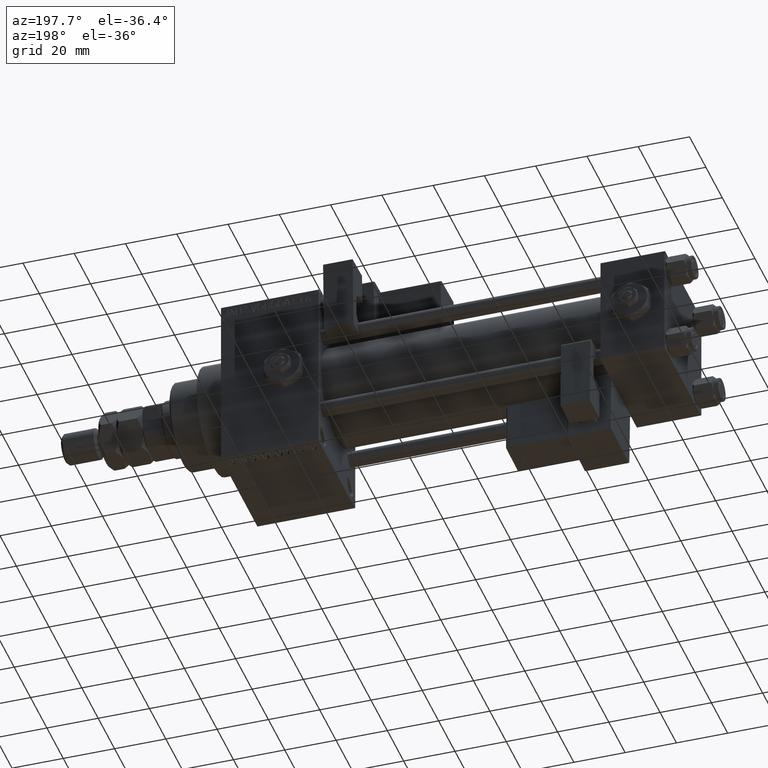
[diagram: clean part render]
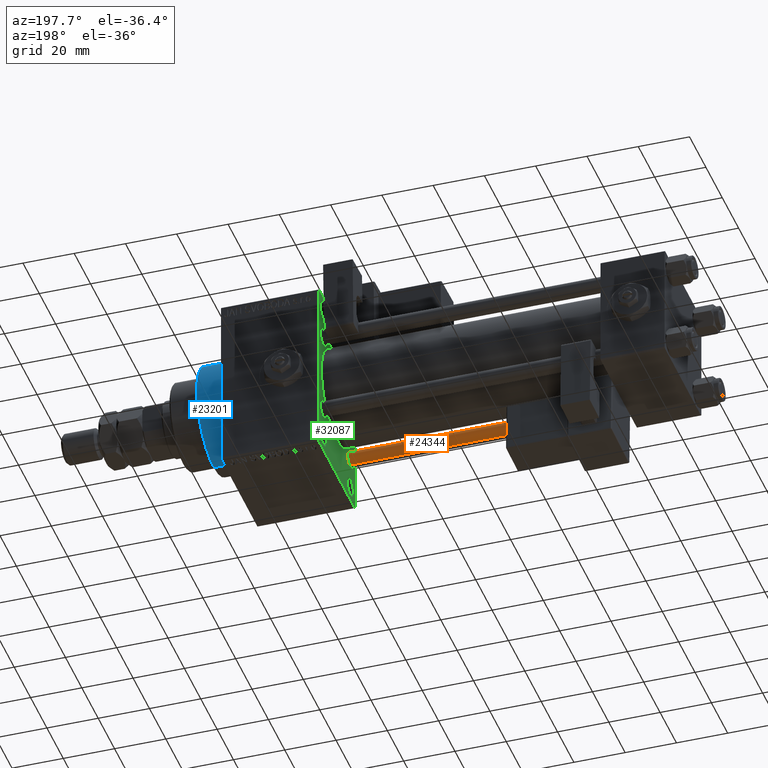
[diagram: same view with three faces highlighted in distinct colors, each labeled with its STEP entity id]
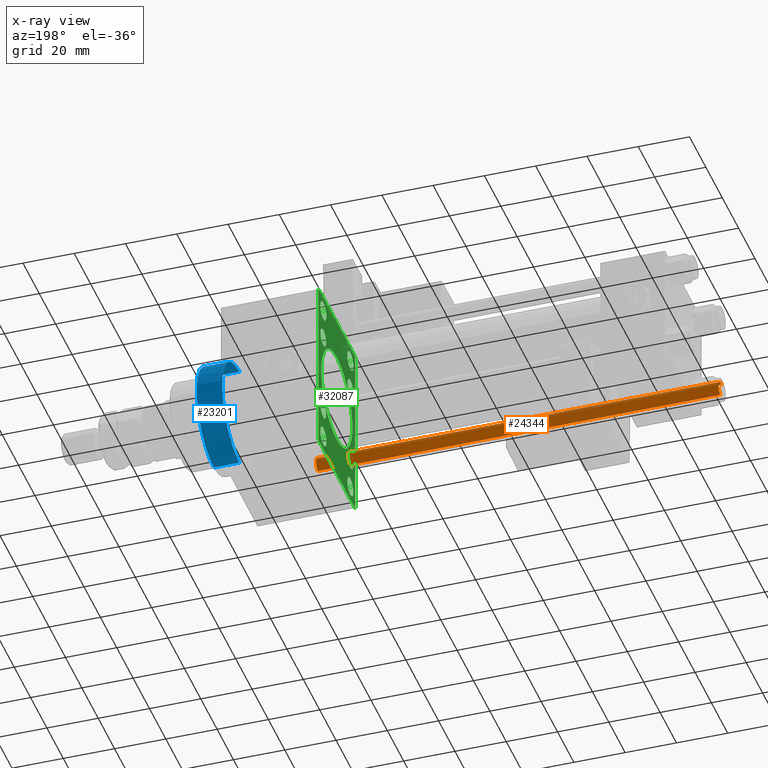
[diagram: x-ray of the same camera — body ghosted, the three highlighted faces saturated]
A machine part, auxiliary view with three faces highlighted in distinct colors.
The next image is the same camera in x-ray (body ghosted, the three faces saturated) — at least one of them is partly hidden behind the body in this view.
Their STEP definitions:

[orange] entity #24344 — the highlighted cylindrical surface (edge-blend (fillet) strip) has radius 3 mm, axis along (-1, 0, 0).
#2551 = EDGE_CURVE ( 'NONE', #22905, #46347, #29197, .T. ) ;
#3430 = CARTESIAN_POINT ( 'NONE',  ( -3.000000000000000444, 0.000000000000000000, 157.5000000000000000 ) ) ;
#4327 = CARTESIAN_POINT ( 'NONE',  ( 3.000000000000000444, 3.673940397442060361E-16, 158.0000000000000000 ) ) ;
#6402 = FACE_OUTER_BOUND ( 'NONE', #19177, .T. ) ;
#6585 = EDGE_CURVE ( 'NONE', #12872, #46347, #11054, .T. ) ;
#7378 = ORIENTED_EDGE ( 'NONE', *, *, #15538, .T. ) ;
#8373 = CARTESIAN_POINT ( 'NONE',  ( 3.000000000000000444, 3.673940397442060361E-16, 157.5000000000000000 ) ) ;
#11054 = CIRCLE ( 'NONE', #46968, 3.000000000000000444 ) ;
#12872 = VERTEX_POINT ( 'NONE', #18989 ) ;
#14355 = CARTESIAN_POINT ( 'NONE',  ( -3.000000000000000444, 0.000000000000000000, 158.0000000000000000 ) ) ;
#14438 = CYLINDRICAL_SURFACE ( 'NONE', #30579, 3.000000000000000444 ) ;
#15538 = EDGE_CURVE ( 'NONE', #47833, #12872, #30678, .T. ) ;
#18989 = CARTESIAN_POINT ( 'NONE',  ( -3.000000000000000444, 0.000000000000000000, 0.5000000000000281997 ) ) ;
#19177 = EDGE_LOOP ( 'NONE', ( #20157, #30179, #7378, #31444 ) ) ;
#20157 = ORIENTED_EDGE ( 'NONE', *, *, #2551, .F. ) ;
#22905 = VERTEX_POINT ( 'NONE', #8373 ) ;
#24344 = ADVANCED_FACE ( 'NONE', ( #6402 ), #14438, .T. ) ;
#25410 = VECTOR ( 'NONE', #37494, 1000.000000000000000 ) ;
#26004 = DIRECTION ( 'NONE',  ( 1.000000000000000000, 0.000000000000000000, 0.000000000000000000 ) ) ;
#27826 = DIRECTION ( 'NONE',  ( 1.000000000000000000, 0.000000000000000000, 0.000000000000000000 ) ) ;
#28103 = CARTESIAN_POINT ( 'NONE',  ( 0.000000000000000000, 0.000000000000000000, 0.5000000000000281997 ) ) ;
#29197 = LINE ( 'NONE', #4327, #25410 ) ;
#30179 = ORIENTED_EDGE ( 'NONE', *, *, #48372, .T. ) ;
#30579 = AXIS2_PLACEMENT_3D ( 'NONE', #35037, #34233, #46843 ) ;
#30678 = LINE ( 'NONE', #14355, #31084 ) ;
#31084 = VECTOR ( 'NONE', #31469, 1000.000000000000000 ) ;
#31444 = ORIENTED_EDGE ( 'NONE', *, *, #6585, .T. ) ;
#31469 = DIRECTION ( 'NONE',  ( -0.000000000000000000, -0.000000000000000000, -1.000000000000000000 ) ) ;
#31830 = DIRECTION ( 'NONE',  ( -0.000000000000000000, -0.000000000000000000, 1.000000000000000000 ) ) ;
#32265 = AXIS2_PLACEMENT_3D ( 'NONE', #46353, #42591, #26004 ) ;
#34233 = DIRECTION ( 'NONE',  ( -0.000000000000000000, -0.000000000000000000, -1.000000000000000000 ) ) ;
#34250 = CARTESIAN_POINT ( 'NONE',  ( 3.000000000000000444, 3.673940397442060361E-16, 0.5000000000000281997 ) ) ;
#35037 = CARTESIAN_POINT ( 'NONE',  ( 0.000000000000000000, 0.000000000000000000, 158.0000000000000000 ) ) ;
#37494 = DIRECTION ( 'NONE',  ( -0.000000000000000000, -0.000000000000000000, -1.000000000000000000 ) ) ;
#42591 = DIRECTION ( 'NONE',  ( 0.000000000000000000, 0.000000000000000000, -1.000000000000000000 ) ) ;
#46347 = VERTEX_POINT ( 'NONE', #34250 ) ;
#46353 = CARTESIAN_POINT ( 'NONE',  ( 0.000000000000000000, 0.000000000000000000, 157.5000000000000000 ) ) ;
#46843 = DIRECTION ( 'NONE',  ( -1.000000000000000000, 0.000000000000000000, 0.000000000000000000 ) ) ;
#46968 = AXIS2_PLACEMENT_3D ( 'NONE', #28103, #31830, #27826 ) ;
#47833 = VERTEX_POINT ( 'NONE', #3430 ) ;
#48372 = EDGE_CURVE ( 'NONE', #22905, #47833, #52803, .T. ) ;
#52803 = CIRCLE ( 'NONE', #32265, 3.000000000000000444 ) ;

[blue] entity #23201 — the highlighted cylindrical surface (partial cylindrical patch) has radius 21 mm, axis along (-1, -0, -0).
#119 = CARTESIAN_POINT ( 'NONE',  ( 183.0000000000000284, 0.000000000000000000, 0.000000000000000000 ) ) ;
#329 = CARTESIAN_POINT ( 'NONE',  ( 183.0000000000000284, 0.000000000000000000, 21.00000000000000000 ) ) ;
#350 = EDGE_CURVE ( 'NONE', #16542, #5692, #37287, .T. ) ;
#3228 = VERTEX_POINT ( 'NONE', #23965 ) ;
#3439 = FACE_OUTER_BOUND ( 'NONE', #22268, .T. ) ;
#5692 = VERTEX_POINT ( 'NONE', #43096 ) ;
#12658 = LINE ( 'NONE', #329, #49427 ) ;
#14232 = VERTEX_POINT ( 'NONE', #48795 ) ;
#16542 = VERTEX_POINT ( 'NONE', #42991 ) ;
#16804 = VECTOR ( 'NONE', #39225, 1000.000000000000000 ) ;
#17571 = DIRECTION ( 'NONE',  ( -1.000000000000000000, -0.000000000000000000, -0.000000000000000000 ) ) ;
#17661 = ORIENTED_EDGE ( 'NONE', *, *, #44597, .T. ) ;
#17839 = DIRECTION ( 'NONE',  ( 0.000000000000000000, 0.000000000000000000, 1.000000000000000000 ) ) ;
#18486 = AXIS2_PLACEMENT_3D ( 'NONE', #119, #36276, #28512 ) ;
#19764 = CARTESIAN_POINT ( 'NONE',  ( 173.0000000000000284, 0.000000000000000000, 0.000000000000000000 ) ) ;
#22045 = ORIENTED_EDGE ( 'NONE', *, *, #49480, .F. ) ;
#22268 = EDGE_LOOP ( 'NONE', ( #37737, #30200, #17661, #22045 ) ) ;
#22888 = CARTESIAN_POINT ( 'NONE',  ( 183.0000000000000284, 2.571758278209441661E-15, -21.00000000000000000 ) ) ;
#23201 = ADVANCED_FACE ( 'NONE', ( #3439 ), #52440, .T. ) ;
#23965 = CARTESIAN_POINT ( 'NONE',  ( 173.0000000000000284, 2.571758278209441661E-15, -21.00000000000000000 ) ) ;
#28512 = DIRECTION ( 'NONE',  ( 0.000000000000000000, 0.000000000000000000, -1.000000000000000000 ) ) ;
#28984 = DIRECTION ( 'NONE',  ( -1.000000000000000000, -0.000000000000000000, -0.000000000000000000 ) ) ;
#30200 = ORIENTED_EDGE ( 'NONE', *, *, #47088, .T. ) ;
#31373 = CIRCLE ( 'NONE', #43354, 21.00000000000000000 ) ;
#36276 = DIRECTION ( 'NONE',  ( 1.000000000000000000, 0.000000000000000000, 0.000000000000000000 ) ) ;
#37287 = CIRCLE ( 'NONE', #18486, 21.00000000000000000 ) ;
#37737 = ORIENTED_EDGE ( 'NONE', *, *, #350, .F. ) ;
#39225 = DIRECTION ( 'NONE',  ( -1.000000000000000000, -0.000000000000000000, -0.000000000000000000 ) ) ;
#40386 = DIRECTION ( 'NONE',  ( 1.000000000000000000, 0.000000000000000000, 0.000000000000000000 ) ) ;
#41658 = AXIS2_PLACEMENT_3D ( 'NONE', #48410, #17571, #17839 ) ;
#42697 = LINE ( 'NONE', #22888, #16804 ) ;
#42991 = CARTESIAN_POINT ( 'NONE',  ( 183.0000000000000284, 2.571758278209441661E-15, -21.00000000000000000 ) ) ;
#43096 = CARTESIAN_POINT ( 'NONE',  ( 183.0000000000000284, 0.000000000000000000, 21.00000000000000000 ) ) ;
#43354 = AXIS2_PLACEMENT_3D ( 'NONE', #19764, #40386, #52719 ) ;
#44597 = EDGE_CURVE ( 'NONE', #3228, #14232, #31373, .T. ) ;
#47088 = EDGE_CURVE ( 'NONE', #16542, #3228, #42697, .T. ) ;
#48410 = CARTESIAN_POINT ( 'NONE',  ( 183.0000000000000284, 0.000000000000000000, 0.000000000000000000 ) ) ;
#48795 = CARTESIAN_POINT ( 'NONE',  ( 173.0000000000000284, 0.000000000000000000, 21.00000000000000000 ) ) ;
#49427 = VECTOR ( 'NONE', #28984, 1000.000000000000000 ) ;
#49480 = EDGE_CURVE ( 'NONE', #5692, #14232, #12658, .T. ) ;
#52440 = CYLINDRICAL_SURFACE ( 'NONE', #41658, 21.00000000000000000 ) ;
#52719 = DIRECTION ( 'NONE',  ( 0.000000000000000000, 0.000000000000000000, -1.000000000000000000 ) ) ;

[green] entity #32087 — the highlighted planar face has unit normal (-1, 0, 0).
#555 = ORIENTED_EDGE ( 'NONE', *, *, #30798, .T. ) ;
#585 = CARTESIAN_POINT ( 'NONE',  ( 135.0000000000000000, -16.50000000000000000, -32.75000000000000000 ) ) ;
#677 = EDGE_LOOP ( 'NONE', ( #20619, #19319 ) ) ;
#725 = CIRCLE ( 'NONE', #31533, 3.500000000000006661 ) ;
#757 = AXIS2_PLACEMENT_3D ( 'NONE', #19930, #32516, #36269 ) ;
#882 = VERTEX_POINT ( 'NONE', #29755 ) ;
#971 = EDGE_CURVE ( 'NONE', #25664, #49857, #21078, .T. ) ;
#1047 = VERTEX_POINT ( 'NONE', #19017 ) ;
#1381 = FACE_BOUND ( 'NONE', #28407, .T. ) ;
#1457 = EDGE_LOOP ( 'NONE', ( #49876, #555 ) ) ;
#1660 = CARTESIAN_POINT ( 'NONE',  ( 135.0000000000000000, 0.000000000000000000, 0.000000000000000000 ) ) ;
#2297 = AXIS2_PLACEMENT_3D ( 'NONE', #43066, #26484, #6384 ) ;
#2359 = DIRECTION ( 'NONE',  ( 0.000000000000000000, 0.000000000000000000, 1.000000000000000000 ) ) ;
#2878 = CARTESIAN_POINT ( 'NONE',  ( 135.0000000000000000, 16.50000000000000000, 29.00000000000000355 ) ) ;
#3884 = CARTESIAN_POINT ( 'NONE',  ( 135.0000000000000000, 16.59999999999999787, -16.60000000000000497 ) ) ;
#4572 = CIRCLE ( 'NONE', #37931, 3.500000000000003109 ) ;
#4900 = VERTEX_POINT ( 'NONE', #27682 ) ;
#5428 = PLANE ( 'NONE',  #30766 ) ;
#5438 = CARTESIAN_POINT ( 'NONE',  ( 135.0000000000000000, -2.602085213965210642E-15, 0.000000000000000000 ) ) ;
#5757 = ORIENTED_EDGE ( 'NONE', *, *, #19954, .T. ) ;
#5954 = FACE_BOUND ( 'NONE', #27720, .T. ) ;
#6154 = EDGE_CURVE ( 'NONE', #49857, #25664, #15327, .T. ) ;
#6384 = DIRECTION ( 'NONE',  ( 0.000000000000000000, 0.000000000000000000, 1.000000000000000000 ) ) ;
#6483 = DIRECTION ( 'NONE',  ( 0.000000000000000000, 0.000000000000000000, -1.000000000000000000 ) ) ;
#6620 = VECTOR ( 'NONE', #41701, 1000.000000000000000 ) ;
#6634 = DIRECTION ( 'NONE',  ( 0.000000000000000000, 0.000000000000000000, 1.000000000000000000 ) ) ;
#6676 = VERTEX_POINT ( 'NONE', #8541 ) ;
#7042 = ORIENTED_EDGE ( 'NONE', *, *, #9117, .F. ) ;
#7186 = VERTEX_POINT ( 'NONE', #11857 ) ;
#7334 = CARTESIAN_POINT ( 'NONE',  ( 135.0000000000000000, 28.49999999999999645, 28.49999999999999645 ) ) ;
#7737 = EDGE_CURVE ( 'NONE', #1047, #46274, #14670, .T. ) ;
#8228 = VERTEX_POINT ( 'NONE', #43665 ) ;
#8541 = CARTESIAN_POINT ( 'NONE',  ( 135.0000000000000000, -16.59999999999999076, 13.10000000000000142 ) ) ;
#9117 = EDGE_CURVE ( 'NONE', #36434, #31302, #11550, .T. ) ;
#9203 = ORIENTED_EDGE ( 'NONE', *, *, #52319, .T. ) ;
#9488 = VERTEX_POINT ( 'NONE', #33382 ) ;
#9762 = AXIS2_PLACEMENT_3D ( 'NONE', #37761, #38026, #36258 ) ;
#10140 = DIRECTION ( 'NONE',  ( 1.000000000000000000, 0.000000000000000000, 0.000000000000000000 ) ) ;
#10654 = DIRECTION ( 'NONE',  ( 0.000000000000000000, 0.000000000000000000, 1.000000000000000000 ) ) ;
#10686 = CIRCLE ( 'NONE', #44890, 3.750000000000006661 ) ;
#10987 = AXIS2_PLACEMENT_3D ( 'NONE', #42169, #50730, #18062 ) ;
#11028 = AXIS2_PLACEMENT_3D ( 'NONE', #2878, #35798, #10654 ) ;
#11126 = EDGE_CURVE ( 'NONE', #36917, #11569, #19645, .T. ) ;
#11272 = CIRCLE ( 'NONE', #39459, 3.750000000000006661 ) ;
#11550 = LINE ( 'NONE', #31870, #30959 ) ;
#11569 = VERTEX_POINT ( 'NONE', #44749 ) ;
#11772 = CARTESIAN_POINT ( 'NONE',  ( 135.0000000000000000, -28.50000000000062883, 28.49999999999905143 ) ) ;
#11857 = CARTESIAN_POINT ( 'NONE',  ( 135.0000000000000000, 16.50000000000000000, -25.24999999999998934 ) ) ;
#11887 = ORIENTED_EDGE ( 'NONE', *, *, #971, .T. ) ;
#11936 = EDGE_CURVE ( 'NONE', #36434, #8228, #23540, .T. ) ;
#12342 = VERTEX_POINT ( 'NONE', #28286 ) ;
#12564 = DIRECTION ( 'NONE',  ( 1.000000000000000000, 0.000000000000000000, 0.000000000000000000 ) ) ;
#12590 = DIRECTION ( 'NONE',  ( 0.000000000000000000, 0.000000000000000000, -1.000000000000000000 ) ) ;
#13304 = CARTESIAN_POINT ( 'NONE',  ( 135.0000000000000000, 16.50000000000000000, -28.99999999999999289 ) ) ;
#13495 = ORIENTED_EDGE ( 'NONE', *, *, #39630, .T. ) ;
#13978 = DIRECTION ( 'NONE',  ( 1.000000000000000000, 0.000000000000000000, 0.000000000000000000 ) ) ;
#14155 = AXIS2_PLACEMENT_3D ( 'NONE', #46814, #10140, #51618 ) ;
#14471 = VERTEX_POINT ( 'NONE', #44702 ) ;
#14670 = LINE ( 'NONE', #46016, #50323 ) ;
#14681 = EDGE_CURVE ( 'NONE', #882, #36228, #46443, .T. ) ;
#15218 = ORIENTED_EDGE ( 'NONE', *, *, #51308, .T. ) ;
#15241 = DIRECTION ( 'NONE',  ( -0.000000000000000000, 0.7071067811865279218, 0.7071067811865671127 ) ) ;
#15260 = DIRECTION ( 'NONE',  ( 0.000000000000000000, 0.000000000000000000, 1.000000000000000000 ) ) ;
#15327 = CIRCLE ( 'NONE', #25567, 19.00000000000000000 ) ;
#15372 = DIRECTION ( 'NONE',  ( 0.000000000000000000, 0.7071067811865474617, -0.7071067811865474617 ) ) ;
#16405 = EDGE_LOOP ( 'NONE', ( #5757, #15218 ) ) ;
#16740 = EDGE_LOOP ( 'NONE', ( #19868, #25785 ) ) ;
#16828 = DIRECTION ( 'NONE',  ( 0.000000000000000000, 0.000000000000000000, 1.000000000000000000 ) ) ;
#16930 = CIRCLE ( 'NONE', #10987, 3.500000000000006661 ) ;
#17003 = CIRCLE ( 'NONE', #44386, 3.750000000000006661 ) ;
#17077 = LINE ( 'NONE', #37417, #6620 ) ;
#17196 = FACE_BOUND ( 'NONE', #43769, .T. ) ;
#17723 = FACE_BOUND ( 'NONE', #16405, .T. ) ;
#17820 = ORIENTED_EDGE ( 'NONE', *, *, #6154, .T. ) ;
#17844 = DIRECTION ( 'NONE',  ( 1.000000000000000000, 0.000000000000000000, 0.000000000000000000 ) ) ;
#18062 = DIRECTION ( 'NONE',  ( 0.000000000000000000, 0.000000000000000000, 1.000000000000000000 ) ) ;
#18233 = EDGE_CURVE ( 'NONE', #11569, #18360, #33441, .T. ) ;
#18299 = VERTEX_POINT ( 'NONE', #42543 ) ;
#18360 = VERTEX_POINT ( 'NONE', #43080 ) ;
#18714 = CARTESIAN_POINT ( 'NONE',  ( 135.0000000000000000, -22.50000000000000355, -34.50000000000000000 ) ) ;
#18898 = CARTESIAN_POINT ( 'NONE',  ( 135.0000000000000000, -2.602085213965210642E-15, 19.00000000000000000 ) ) ;
#19017 = CARTESIAN_POINT ( 'NONE',  ( 135.0000000000000000, 22.00000000000002132, -35.00000000000000000 ) ) ;
#19319 = ORIENTED_EDGE ( 'NONE', *, *, #37738, .T. ) ;
#19460 = CARTESIAN_POINT ( 'NONE',  ( 135.0000000000000000, -16.50000000000000000, -28.99999999999999289 ) ) ;
#19645 = LINE ( 'NONE', #7334, #43854 ) ;
#19735 = EDGE_CURVE ( 'NONE', #18360, #1047, #41194, .T. ) ;
#19756 = CARTESIAN_POINT ( 'NONE',  ( 135.0000000000000000, -16.59999999999999076, 16.60000000000000853 ) ) ;
#19868 = ORIENTED_EDGE ( 'NONE', *, *, #50567, .T. ) ;
#19930 = CARTESIAN_POINT ( 'NONE',  ( 135.0000000000000000, 16.59999999999999787, 16.60000000000000497 ) ) ;
#19954 = EDGE_CURVE ( 'NONE', #25204, #14471, #44958, .T. ) ;
#20069 = VECTOR ( 'NONE', #12590, 1000.000000000000000 ) ;
#20191 = DIRECTION ( 'NONE',  ( 1.000000000000000000, 0.000000000000000000, 0.000000000000000000 ) ) ;
#20450 = VERTEX_POINT ( 'NONE', #35748 ) ;
#20609 = DIRECTION ( 'NONE',  ( 0.000000000000000000, 0.000000000000000000, -1.000000000000000000 ) ) ;
#20612 = CARTESIAN_POINT ( 'NONE',  ( 135.0000000000000000, 22.49999999999999645, 35.00000000000000000 ) ) ;
#20619 = ORIENTED_EDGE ( 'NONE', *, *, #14681, .T. ) ;
#21078 = CIRCLE ( 'NONE', #51907, 19.00000000000000000 ) ;
#21490 = CARTESIAN_POINT ( 'NONE',  ( 135.0000000000000000, 16.59999999999999787, 20.10000000000001208 ) ) ;
#22275 = FACE_BOUND ( 'NONE', #1457, .T. ) ;
#22514 = DIRECTION ( 'NONE',  ( 1.000000000000000000, 0.000000000000000000, 0.000000000000000000 ) ) ;
#22578 = EDGE_LOOP ( 'NONE', ( #27692, #46215, #7042, #26540, #25499, #47214, #47270, #29713 ) ) ;
#22813 = AXIS2_PLACEMENT_3D ( 'NONE', #19756, #31274, #27798 ) ;
#22942 = EDGE_CURVE ( 'NONE', #7186, #9488, #39912, .T. ) ;
#23017 = AXIS2_PLACEMENT_3D ( 'NONE', #41727, #12564, #16828 ) ;
#23540 = LINE ( 'NONE', #11772, #35368 ) ;
#23628 = ORIENTED_EDGE ( 'NONE', *, *, #25250, .T. ) ;
#24139 = EDGE_LOOP ( 'NONE', ( #11887, #17820 ) ) ;
#24709 = CARTESIAN_POINT ( 'NONE',  ( 135.0000000000000000, -16.50000000000000000, 29.00000000000000711 ) ) ;
#25204 = VERTEX_POINT ( 'NONE', #50312 ) ;
#25250 = EDGE_CURVE ( 'NONE', #29734, #6676, #47586, .T. ) ;
#25499 = ORIENTED_EDGE ( 'NONE', *, *, #45680, .F. ) ;
#25567 = AXIS2_PLACEMENT_3D ( 'NONE', #5438, #42351, #6483 ) ;
#25626 = DIRECTION ( 'NONE',  ( 0.000000000000000000, 0.000000000000000000, 1.000000000000000000 ) ) ;
#25664 = VERTEX_POINT ( 'NONE', #18898 ) ;
#25785 = ORIENTED_EDGE ( 'NONE', *, *, #51343, .T. ) ;
#25862 = DIRECTION ( 'NONE',  ( 0.000000000000000000, -0.7071067811865474617, 0.7071067811865474617 ) ) ;
#26296 = FACE_BOUND ( 'NONE', #677, .T. ) ;
#26484 = DIRECTION ( 'NONE',  ( 1.000000000000000000, 0.000000000000000000, 0.000000000000000000 ) ) ;
#26540 = ORIENTED_EDGE ( 'NONE', *, *, #11936, .T. ) ;
#26805 = DIRECTION ( 'NONE',  ( 0.000000000000000000, 0.000000000000000000, -1.000000000000000000 ) ) ;
#26831 = ORIENTED_EDGE ( 'NONE', *, *, #33735, .T. ) ;
#27342 = DIRECTION ( 'NONE',  ( 0.000000000000000000, 0.000000000000000000, 1.000000000000000000 ) ) ;
#27682 = CARTESIAN_POINT ( 'NONE',  ( 135.0000000000000000, -16.50000000000000000, -25.24999999999998934 ) ) ;
#27692 = ORIENTED_EDGE ( 'NONE', *, *, #7737, .T. ) ;
#27720 = EDGE_LOOP ( 'NONE', ( #49554, #13495 ) ) ;
#27766 = DIRECTION ( 'NONE',  ( 0.000000000000000000, 0.000000000000000000, 1.000000000000000000 ) ) ;
#27798 = DIRECTION ( 'NONE',  ( 0.000000000000000000, 0.000000000000000000, 1.000000000000000000 ) ) ;
#27938 = VERTEX_POINT ( 'NONE', #21490 ) ;
#28286 = CARTESIAN_POINT ( 'NONE',  ( 135.0000000000000000, -16.50000000000000000, 32.75000000000000711 ) ) ;
#28301 = DIRECTION ( 'NONE',  ( 1.000000000000000000, 0.000000000000000000, 0.000000000000000000 ) ) ;
#28407 = EDGE_LOOP ( 'NONE', ( #26831, #9203 ) ) ;
#28718 = DIRECTION ( 'NONE',  ( 0.000000000000000000, 0.000000000000000000, 1.000000000000000000 ) ) ;
#28889 = CARTESIAN_POINT ( 'NONE',  ( 135.0000000000000000, 28.50000000000061817, -28.49999999999904077 ) ) ;
#29544 = VECTOR ( 'NONE', #40164, 1000.000000000000000 ) ;
#29713 = ORIENTED_EDGE ( 'NONE', *, *, #19735, .T. ) ;
#29734 = VERTEX_POINT ( 'NONE', #34552 ) ;
#29755 = CARTESIAN_POINT ( 'NONE',  ( 135.0000000000000000, 16.59999999999999787, -13.09999999999999787 ) ) ;
#30395 = LINE ( 'NONE', #37904, #49993 ) ;
#30766 = AXIS2_PLACEMENT_3D ( 'NONE', #1660, #42088, #46639 ) ;
#30798 = EDGE_CURVE ( 'NONE', #9488, #7186, #17003, .T. ) ;
#30959 = VECTOR ( 'NONE', #20609, 1000.000000000000000 ) ;
#31274 = DIRECTION ( 'NONE',  ( 1.000000000000000000, 0.000000000000000000, 0.000000000000000000 ) ) ;
#31302 = VERTEX_POINT ( 'NONE', #18714 ) ;
#31511 = DIRECTION ( 'NONE',  ( 1.000000000000000000, 0.000000000000000000, 0.000000000000000000 ) ) ;
#31533 = AXIS2_PLACEMENT_3D ( 'NONE', #47326, #31511, #6634 ) ;
#31870 = CARTESIAN_POINT ( 'NONE',  ( 135.0000000000000000, -22.50000000000000355, 35.00000000000000000 ) ) ;
#31920 = AXIS2_PLACEMENT_3D ( 'NONE', #3884, #20191, #2359 ) ;
#32087 = ADVANCED_FACE ( 'NONE', ( #1381, #5954, #22275, #17723, #17196, #33513, #26296, #46376, #42342, #50119 ), #5428, .T. ) ;
#32136 = DIRECTION ( 'NONE',  ( 1.000000000000000000, 0.000000000000000000, 0.000000000000000000 ) ) ;
#32385 = CARTESIAN_POINT ( 'NONE',  ( 135.0000000000000000, 16.59999999999999787, -16.60000000000000497 ) ) ;
#32516 = DIRECTION ( 'NONE',  ( 1.000000000000000000, 0.000000000000000000, 0.000000000000000000 ) ) ;
#32530 = ORIENTED_EDGE ( 'NONE', *, *, #34624, .T. ) ;
#32633 = DIRECTION ( 'NONE',  ( 1.000000000000000000, 0.000000000000000000, 0.000000000000000000 ) ) ;
#32910 = EDGE_CURVE ( 'NONE', #4900, #33841, #11272, .T. ) ;
#33382 = CARTESIAN_POINT ( 'NONE',  ( 135.0000000000000000, 16.50000000000000000, -32.75000000000000000 ) ) ;
#33441 = LINE ( 'NONE', #20612, #20069 ) ;
#33513 = FACE_BOUND ( 'NONE', #48317, .T. ) ;
#33735 = EDGE_CURVE ( 'NONE', #12342, #49289, #34311, .T. ) ;
#33841 = VERTEX_POINT ( 'NONE', #585 ) ;
#34076 = CIRCLE ( 'NONE', #11028, 3.750000000000003553 ) ;
#34311 = CIRCLE ( 'NONE', #41167, 3.750000000000000000 ) ;
#34552 = CARTESIAN_POINT ( 'NONE',  ( 135.0000000000000000, -16.59999999999999076, 20.10000000000001208 ) ) ;
#34624 = EDGE_CURVE ( 'NONE', #6676, #29734, #4572, .T. ) ;
#35185 = CARTESIAN_POINT ( 'NONE',  ( 135.0000000000000000, 21.99999999999999645, 35.00000000000000000 ) ) ;
#35368 = VECTOR ( 'NONE', #15241, 1000.000000000000000 ) ;
#35748 = CARTESIAN_POINT ( 'NONE',  ( 135.0000000000000000, -16.59999999999999076, -20.10000000000001208 ) ) ;
#35798 = DIRECTION ( 'NONE',  ( 1.000000000000000000, 0.000000000000000000, 0.000000000000000000 ) ) ;
#36113 = ORIENTED_EDGE ( 'NONE', *, *, #39399, .T. ) ;
#36228 = VERTEX_POINT ( 'NONE', #36251 ) ;
#36251 = CARTESIAN_POINT ( 'NONE',  ( 135.0000000000000000, 16.59999999999999787, -20.10000000000000853 ) ) ;
#36258 = DIRECTION ( 'NONE',  ( 0.000000000000000000, 0.000000000000000000, 1.000000000000000000 ) ) ;
#36269 = DIRECTION ( 'NONE',  ( 0.000000000000000000, 0.000000000000000000, 1.000000000000000000 ) ) ;
#36434 = VERTEX_POINT ( 'NONE', #39677 ) ;
#36700 = CIRCLE ( 'NONE', #757, 3.500000000000006661 ) ;
#36885 = CARTESIAN_POINT ( 'NONE',  ( 135.0000000000000000, -2.752562955852396712E-16, -19.00000000000000000 ) ) ;
#36917 = VERTEX_POINT ( 'NONE', #35185 ) ;
#37221 = CARTESIAN_POINT ( 'NONE',  ( 135.0000000000000000, -21.99999999999998934, -35.00000000000000000 ) ) ;
#37417 = CARTESIAN_POINT ( 'NONE',  ( 135.0000000000000000, 22.49999999999999645, 35.00000000000000000 ) ) ;
#37738 = EDGE_CURVE ( 'NONE', #36228, #882, #52513, .T. ) ;
#37761 = CARTESIAN_POINT ( 'NONE',  ( 135.0000000000000000, 16.59999999999999787, 16.60000000000000497 ) ) ;
#37904 = CARTESIAN_POINT ( 'NONE',  ( 135.0000000000000000, -28.49999999999999645, -28.49999999999999645 ) ) ;
#37931 = AXIS2_PLACEMENT_3D ( 'NONE', #50646, #13978, #50905 ) ;
#38026 = DIRECTION ( 'NONE',  ( 1.000000000000000000, 0.000000000000000000, 0.000000000000000000 ) ) ;
#39399 = EDGE_CURVE ( 'NONE', #18299, #27938, #39720, .T. ) ;
#39459 = AXIS2_PLACEMENT_3D ( 'NONE', #40188, #32136, #27342 ) ;
#39630 = EDGE_CURVE ( 'NONE', #33841, #4900, #10686, .T. ) ;
#39677 = CARTESIAN_POINT ( 'NONE',  ( 135.0000000000000000, -22.50000000000000355, 34.50000000000000000 ) ) ;
#39720 = CIRCLE ( 'NONE', #9762, 3.500000000000006661 ) ;
#39880 = EDGE_CURVE ( 'NONE', #46274, #31302, #30395, .T. ) ;
#39912 = CIRCLE ( 'NONE', #2297, 3.750000000000006661 ) ;
#40072 = CARTESIAN_POINT ( 'NONE',  ( 135.0000000000000000, -16.59999999999999076, -13.10000000000000142 ) ) ;
#40164 = DIRECTION ( 'NONE',  ( -0.000000000000000000, -0.7071067811865279218, -0.7071067811865671127 ) ) ;
#40188 = CARTESIAN_POINT ( 'NONE',  ( 135.0000000000000000, -16.50000000000000000, -28.99999999999999289 ) ) ;
#41030 = DIRECTION ( 'NONE',  ( 1.000000000000000000, 0.000000000000000000, 0.000000000000000000 ) ) ;
#41167 = AXIS2_PLACEMENT_3D ( 'NONE', #24709, #41030, #28718 ) ;
#41194 = LINE ( 'NONE', #28889, #29544 ) ;
#41230 = ORIENTED_EDGE ( 'NONE', *, *, #51738, .T. ) ;
#41701 = DIRECTION ( 'NONE',  ( 0.000000000000000000, -1.000000000000000000, 0.000000000000000000 ) ) ;
#41727 = CARTESIAN_POINT ( 'NONE',  ( 135.0000000000000000, -16.50000000000000000, 29.00000000000000711 ) ) ;
#42088 = DIRECTION ( 'NONE',  ( -1.000000000000000000, 0.000000000000000000, -0.000000000000000000 ) ) ;
#42169 = CARTESIAN_POINT ( 'NONE',  ( 135.0000000000000000, -16.59999999999999076, -16.60000000000000853 ) ) ;
#42342 = FACE_BOUND ( 'NONE', #24139, .T. ) ;
#42351 = DIRECTION ( 'NONE',  ( 1.000000000000000000, 0.000000000000000000, 0.000000000000000000 ) ) ;
#42543 = CARTESIAN_POINT ( 'NONE',  ( 135.0000000000000000, 16.59999999999999787, 13.09999999999999609 ) ) ;
#43050 = DIRECTION ( 'NONE',  ( 0.000000000000000000, -1.000000000000000000, 0.000000000000000000 ) ) ;
#43066 = CARTESIAN_POINT ( 'NONE',  ( 135.0000000000000000, 16.50000000000000000, -28.99999999999999289 ) ) ;
#43080 = CARTESIAN_POINT ( 'NONE',  ( 135.0000000000000000, 22.49999999999999645, -34.50000000000000000 ) ) ;
#43665 = CARTESIAN_POINT ( 'NONE',  ( 135.0000000000000000, -22.00000000000001776, 35.00000000000000000 ) ) ;
#43769 = EDGE_LOOP ( 'NONE', ( #23628, #32530 ) ) ;
#43854 = VECTOR ( 'NONE', #15372, 1000.000000000000114 ) ;
#43997 = CARTESIAN_POINT ( 'NONE',  ( 135.0000000000000000, -16.50000000000000000, 25.25000000000000711 ) ) ;
#44386 = AXIS2_PLACEMENT_3D ( 'NONE', #13304, #17844, #25626 ) ;
#44389 = CIRCLE ( 'NONE', #23017, 3.750000000000000000 ) ;
#44702 = CARTESIAN_POINT ( 'NONE',  ( 135.0000000000000000, 16.50000000000000000, 25.25000000000000355 ) ) ;
#44749 = CARTESIAN_POINT ( 'NONE',  ( 135.0000000000000000, 22.49999999999999645, 34.50000000000000000 ) ) ;
#44890 = AXIS2_PLACEMENT_3D ( 'NONE', #19460, #28301, #27766 ) ;
#44958 = CIRCLE ( 'NONE', #14155, 3.750000000000003553 ) ;
#45680 = EDGE_CURVE ( 'NONE', #36917, #8228, #17077, .T. ) ;
#45849 = VERTEX_POINT ( 'NONE', #40072 ) ;
#46016 = CARTESIAN_POINT ( 'NONE',  ( 135.0000000000000000, 22.49999999999999645, -35.00000000000000000 ) ) ;
#46215 = ORIENTED_EDGE ( 'NONE', *, *, #39880, .T. ) ;
#46274 = VERTEX_POINT ( 'NONE', #37221 ) ;
#46376 = FACE_BOUND ( 'NONE', #16740, .T. ) ;
#46443 = CIRCLE ( 'NONE', #31920, 3.500000000000006661 ) ;
#46639 = DIRECTION ( 'NONE',  ( -0.000000000000000000, 0.000000000000000000, 1.000000000000000000 ) ) ;
#46814 = CARTESIAN_POINT ( 'NONE',  ( 135.0000000000000000, 16.50000000000000000, 29.00000000000000355 ) ) ;
#47158 = CARTESIAN_POINT ( 'NONE',  ( 135.0000000000000000, -2.602085213965210642E-15, 0.000000000000000000 ) ) ;
#47214 = ORIENTED_EDGE ( 'NONE', *, *, #11126, .T. ) ;
#47270 = ORIENTED_EDGE ( 'NONE', *, *, #18233, .T. ) ;
#47326 = CARTESIAN_POINT ( 'NONE',  ( 135.0000000000000000, -16.59999999999999076, -16.60000000000000853 ) ) ;
#47378 = AXIS2_PLACEMENT_3D ( 'NONE', #32385, #32633, #15260 ) ;
#47586 = CIRCLE ( 'NONE', #22813, 3.500000000000003109 ) ;
#48317 = EDGE_LOOP ( 'NONE', ( #41230, #36113 ) ) ;
#49289 = VERTEX_POINT ( 'NONE', #43997 ) ;
#49554 = ORIENTED_EDGE ( 'NONE', *, *, #32910, .T. ) ;
#49857 = VERTEX_POINT ( 'NONE', #36885 ) ;
#49876 = ORIENTED_EDGE ( 'NONE', *, *, #22942, .T. ) ;
#49993 = VECTOR ( 'NONE', #25862, 1000.000000000000114 ) ;
#50119 = FACE_OUTER_BOUND ( 'NONE', #22578, .T. ) ;
#50312 = CARTESIAN_POINT ( 'NONE',  ( 135.0000000000000000, 16.50000000000000000, 32.75000000000000000 ) ) ;
#50323 = VECTOR ( 'NONE', #43050, 1000.000000000000000 ) ;
#50567 = EDGE_CURVE ( 'NONE', #45849, #20450, #16930, .T. ) ;
#50646 = CARTESIAN_POINT ( 'NONE',  ( 135.0000000000000000, -16.59999999999999076, 16.60000000000000853 ) ) ;
#50730 = DIRECTION ( 'NONE',  ( 1.000000000000000000, 0.000000000000000000, 0.000000000000000000 ) ) ;
#50905 = DIRECTION ( 'NONE',  ( 0.000000000000000000, 0.000000000000000000, 1.000000000000000000 ) ) ;
#51308 = EDGE_CURVE ( 'NONE', #14471, #25204, #34076, .T. ) ;
#51343 = EDGE_CURVE ( 'NONE', #20450, #45849, #725, .T. ) ;
#51618 = DIRECTION ( 'NONE',  ( 0.000000000000000000, 0.000000000000000000, 1.000000000000000000 ) ) ;
#51738 = EDGE_CURVE ( 'NONE', #27938, #18299, #36700, .T. ) ;
#51907 = AXIS2_PLACEMENT_3D ( 'NONE', #47158, #22514, #26805 ) ;
#52319 = EDGE_CURVE ( 'NONE', #49289, #12342, #44389, .T. ) ;
#52513 = CIRCLE ( 'NONE', #47378, 3.500000000000006661 ) ;